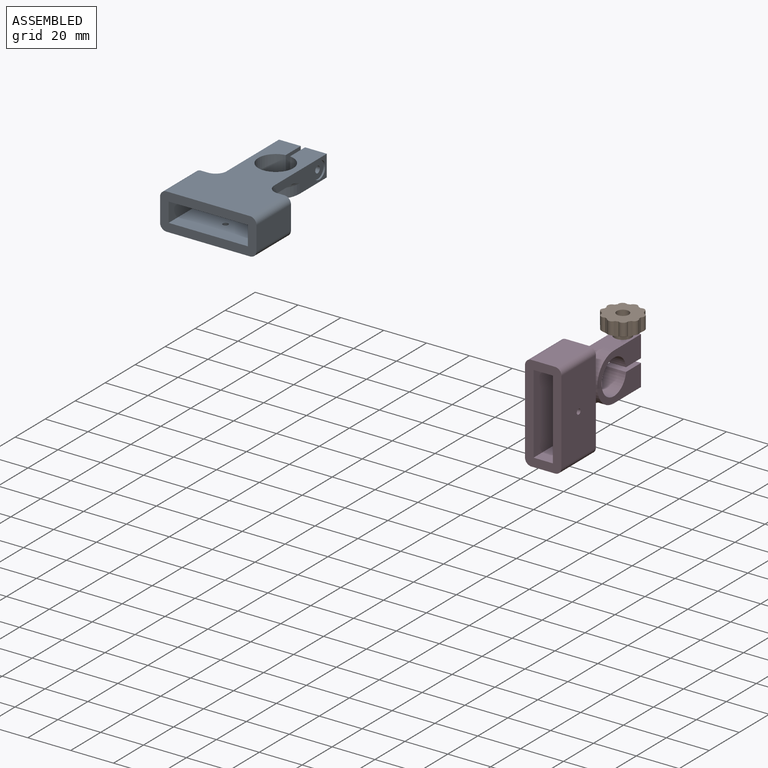
[diagram: assembled view]
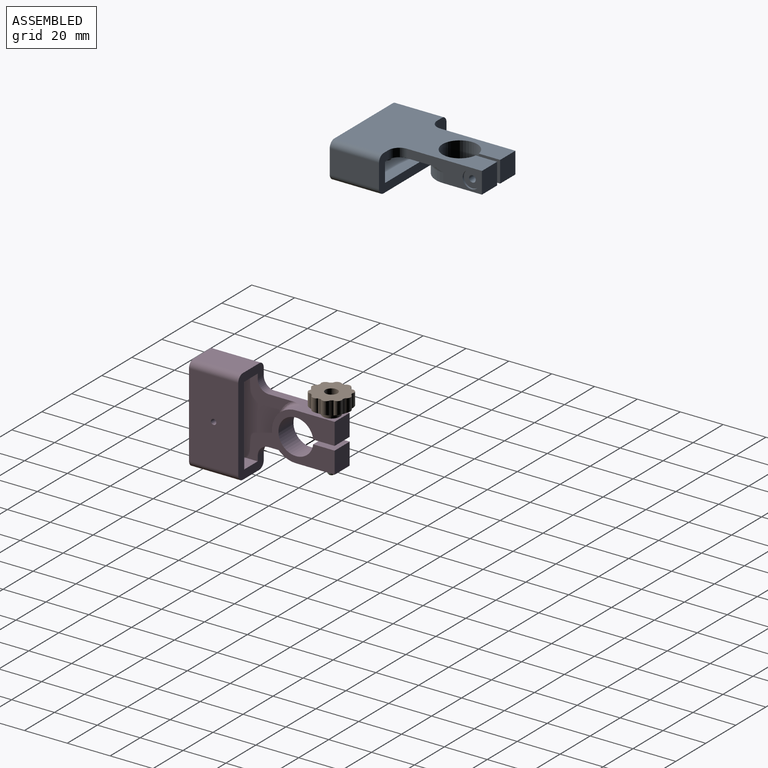
[diagram: assembled view, second angle]
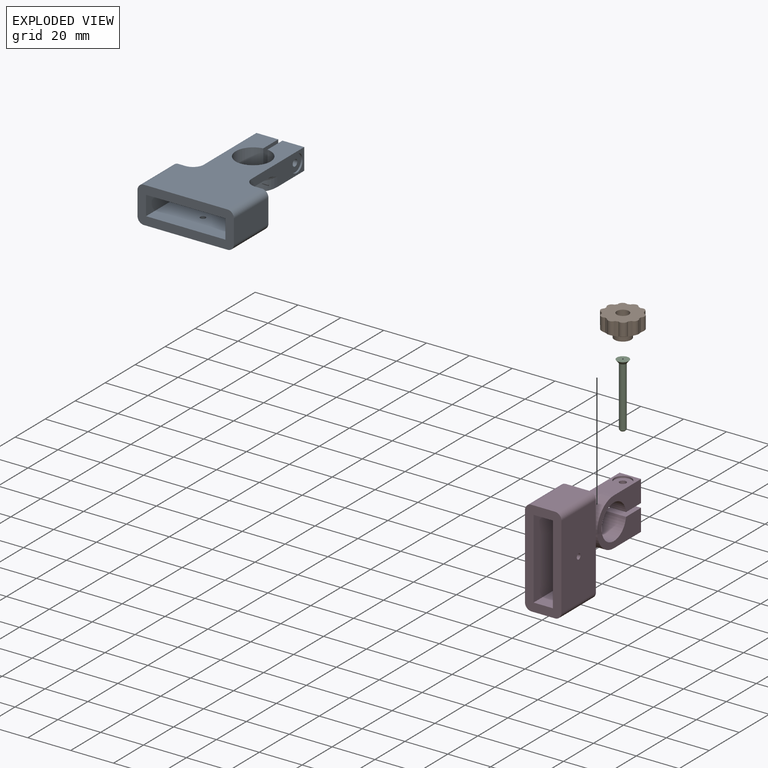
[diagram: exploded view]
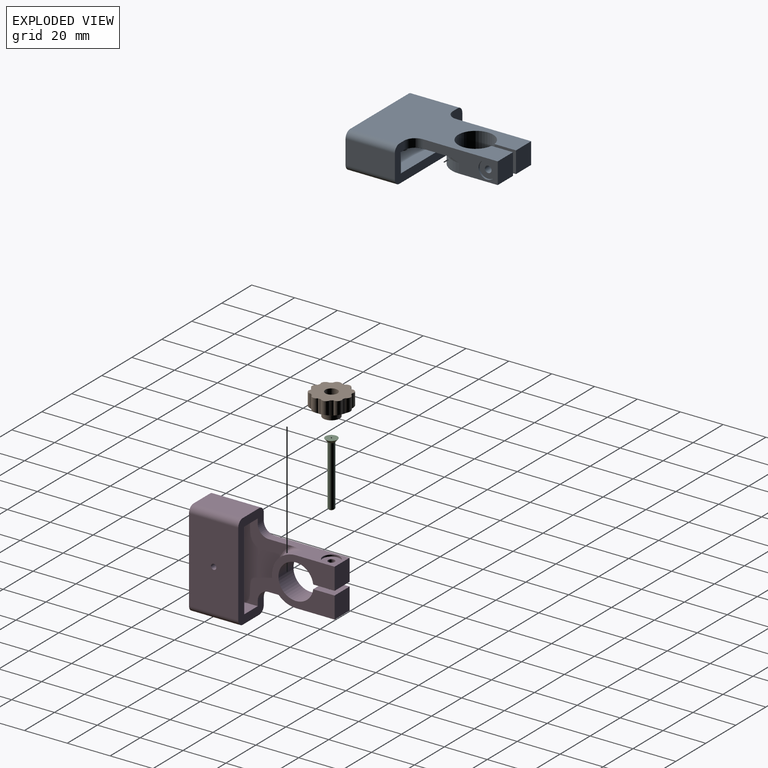
[diagram: exploded view, second angle]
ASSEMBLY  parts=3 mates=2
PART A: 27 faces, bbox 18.1x18.1x10.4 mm
  f0: cylinder r=8.05mm len=6.35mm, axis (0,0,1), area 8.6mm2, adj f12,f14,f17,f26
  f1: cylinder r=8.05mm len=6.35mm, axis (0,0,1), area 8.6mm2, adj f12,f14,f25,f26
  f2: cylinder r=8.05mm len=6.35mm, axis (0,0,1), area 8.6mm2, adj f12,f14,f24,f25
  f3: cylinder r=8.05mm len=6.35mm, axis (0,0,1), area 8.6mm2, adj f12,f14,f23,f24
  f4: cylinder r=8.05mm len=6.35mm, axis (0,0,1), area 8.6mm2, adj f12,f14,f22,f23
  f5: cylinder r=8.05mm len=6.35mm, axis (0,0,1), area 8.6mm2, adj f12,f14,f21,f22
  f6: cylinder r=8.05mm len=6.35mm, axis (0,0,1), area 8.6mm2, adj f12,f14,f20,f21
  f7: cylinder r=8.05mm len=6.35mm, axis (0,0,1), area 8.6mm2, adj f12,f14,f19,f20
  f8: cylinder r=8.05mm len=6.35mm, axis (0,0,1), area 8.6mm2, adj f12,f14,f18,f19
  f9: cylinder r=1.5mm len=4mm, axis (0,0,1), area 37.7mm2, adj f10,f16
  f10: cone r=1.5mm half-angle=45deg, axis (0,0,1), area 26.1mm2, adj f9,f11
  f11: cylinder r=2.85mm len=5.7mm, axis (0,0,1), area 89.5mm2, adj f10,f12
  f12: plane 18.1x17.41mm, normal (0,0,1), area 205mm2, adj f0,f1,f2,f3,f4,f5,f6,f7
  f13: cylinder r=8.05mm len=6.35mm, axis (0,0,1), area 8.6mm2, adj f12,f14,f17,f18
  f14: cone r=8.05mm half-angle=64.3deg, axis (0,0,1), area 202.9mm2, adj f0,f1,f2,f3,f4,f5,f6,f7
  f15: cylinder r=3.9mm len=7.8mm, axis (0,0,1), area 49mm2, adj f14,f16
  f16: plane 7.8x7.8mm, normal (0,0,-1), area 40.7mm2, adj f9,f15
  f17: cylinder r=2mm len=6.35mm, axis (0,0,1), area 28.1mm2, adj f0,f12,f13,f14
  f18: cylinder r=2mm len=6.35mm, axis (0,0,1), area 28.1mm2, adj f8,f12,f13,f14
  f19: cylinder r=2mm len=6.35mm, axis (0,0,1), area 28.1mm2, adj f7,f8,f12,f14
  f20: cylinder r=2mm len=6.35mm, axis (0,0,1), area 28.1mm2, adj f6,f7,f12,f14
  f21: cylinder r=2mm len=6.35mm, axis (0,0,1), area 28.1mm2, adj f5,f6,f12,f14
  f22: cylinder r=2mm len=6.35mm, axis (0,0,1), area 28.1mm2, adj f4,f5,f12,f14
  f23: cylinder r=2mm len=6.35mm, axis (0,0,1), area 28.1mm2, adj f3,f4,f12,f14
  f24: cylinder r=2mm len=6.35mm, axis (0,0,1), area 28.1mm2, adj f2,f3,f12,f14
  f25: cylinder r=2mm len=6.35mm, axis (0,0,1), area 28.1mm2, adj f1,f2,f12,f14
  f26: cylinder r=2mm len=6.35mm, axis (0,0,1), area 28.1mm2, adj f0,f1,f12,f14
PART B: 5 faces, bbox 5.6x5.6x30 mm
  f0: plane 5.6x5.6mm, normal (0,0,1), area 24.6mm2, adj f1
  f1: cone r=2.8mm half-angle=40.9deg, axis (0,0,1), area 26.8mm2, adj f0,f2
  f2: cylinder r=1.5mm len=28mm, axis (0,0,1), area 263.9mm2, adj f1,f4
  f3: plane 2x2mm, normal (0,0,-1), area 3.1mm2, adj f4
  f4: cone r=1.5mm half-angle=45deg, axis (0,0,1), area 5.6mm2, adj f2,f3
PART C: 38 faces, bbox 45x63.1x17 mm
  f0: cylinder r=1.55mm len=9.35mm, axis (1,0,0), area 91.1mm2, adj f6,f35
  f1: plane 35.01x10mm, normal (-1,0,0), area 228.6mm2, adj f3,f9,f10,f11,f13,f14,f15,f16
  f2: plane 35.01x10mm, normal (1,0,0), area 201.7mm2, adj f3,f5,f10,f11,f19,f29,f36,f37
  f3: cylinder r=11.15mm len=22.3mm, axis (0,0,-1), area 157.6mm2, adj f1,f2,f11,f37
  f4: cylinder r=1.55mm len=6.15mm, axis (1,0,0), area 59.9mm2, adj f8,f12
  f5: plane 10.15x10mm, normal (0,1,0), area 101.5mm2, adj f2,f6,f10,f11
  f6: plane 10x10mm, normal (-1,0,0), area 92.5mm2, adj f0,f5,f7,f10,f11
  f7: cylinder r=8.15mm len=16.3mm, axis (0,0,-1), area 492mm2, adj f6,f8,f10,f11
  f8: plane 10x10mm, normal (1,0,0), area 92.5mm2, adj f4,f7,f9,f10,f11
  f9: plane 10.15x10mm, normal (0,1,0), area 101.5mm2, adj f1,f8,f10,f11
  f10: plane 63.09x39mm, normal (0,0,1), area 1573.5mm2, adj f1,f2,f5,f6,f7,f8,f9,f20
  f11: plane 29.24x22.3mm, normal (0,0,-1), area 370.1mm2, adj f1,f2,f3,f5,f6,f7,f8,f9
  f12: plane 6x5.2mm, normal (-1,0,0), area 15.8mm2, adj f4,f13,f14,f15,f16,f17,f18
  f13: plane 4x2.6mm, normal (0,-0.87,-0.5), area 12mm2, adj f1,f12,f14,f18
  f14: plane 4x2.6mm, normal (0,-0.87,0.5), area 12mm2, adj f1,f12,f13,f15
  f15: plane 4x3mm, normal (0,0,1), area 12mm2, adj f1,f12,f14,f16
  f16: plane 4x2.6mm, normal (0,0.87,0.5), area 12mm2, adj f1,f12,f15,f17
  f17: plane 4x2.6mm, normal (0,0.87,-0.5), area 12mm2, adj f1,f12,f16,f18
  f18: plane 4x3mm, normal (0,0,-1), area 12mm2, adj f1,f12,f13,f17
  f19: plane 39.03x37mm, normal (0,0,-1), area 1113.4mm2, adj f1,f2,f20,f21,f22,f23,f28,f29
  f20: plane 45x17mm, normal (0,-1,0), area 424.3mm2, adj f10,f19,f22,f23,f24,f25,f26,f27
  f21: plane 45x17mm, normal (0,1,0), area 294.4mm2, adj f10,f19,f22,f23,f24,f25,f26,f27
  f22: plane 23x9mm, normal (1,0,0), area 207mm2, adj f19,f20,f21,f27
  f23: plane 23x9mm, normal (-1,0,0), area 207mm2, adj f19,f20,f21,f27
  f24: plane 23x11mm, normal (-1,0,0), area 253mm2, adj f20,f21,f30,f31
  f25: plane 39x23mm, normal (0,0,-1), area 892.1mm2, adj f20,f21,f31,f32,f34
  f26: plane 23x11mm, normal (1,0,0), area 253mm2, adj f20,f21,f32,f33
  f27: plane 37x23mm, normal (0,0,1), area 846.1mm2, adj f20,f21,f22,f23,f34
  f28: cylinder r=5.08mm len=5.08mm, axis (0,0,1), area 31.9mm2, adj f1,f10,f19,f21
  f29: cylinder r=5.08mm len=5.08mm, axis (0,0,-1), area 31.9mm2, adj f2,f10,f19,f21
  f30: cylinder r=3mm len=23mm, axis (0,1,0), area 108.4mm2, adj f10,f20,f21,f24
  f31: cylinder r=3mm len=23mm, axis (0,-1,0), area 108.4mm2, adj f20,f21,f24,f25
  f32: cylinder r=3mm len=23mm, axis (0,-1,0), area 108.4mm2, adj f20,f21,f25,f26
  f33: cylinder r=3mm len=23mm, axis (0,1,0), area 108.4mm2, adj f10,f20,f21,f26
  f34: cylinder r=1.25mm len=4mm, axis (0,0,-1), area 31.4mm2, adj f25,f27
  f35: plane 8x8mm, normal (1,0,0), area 42.7mm2, adj f0,f36
  f36: cylinder r=4mm len=8mm, axis (1,0,0), area 20.1mm2, adj f2,f35
  f37: torus R=12.65mm, axis (0,0,-1), area 71.6mm2, adj f1,f2,f3,f19
PLACE A t=(16.24,10.64,8.59)mm
PLACE B t=(62.72,10.64,-4.76)mm
PLACE C rot(axis=(0,-1,0),90deg) t=(21.24,-2.45,-5.76)mm
MATE fastened C.f36 <-> A.f0  axis (0,0,1) through (16.24,10.64,4.59)mm
MATE fastened B.f1 <-> A.f0  axis (0,0,1) through (16.24,10.64,8.59)mm
